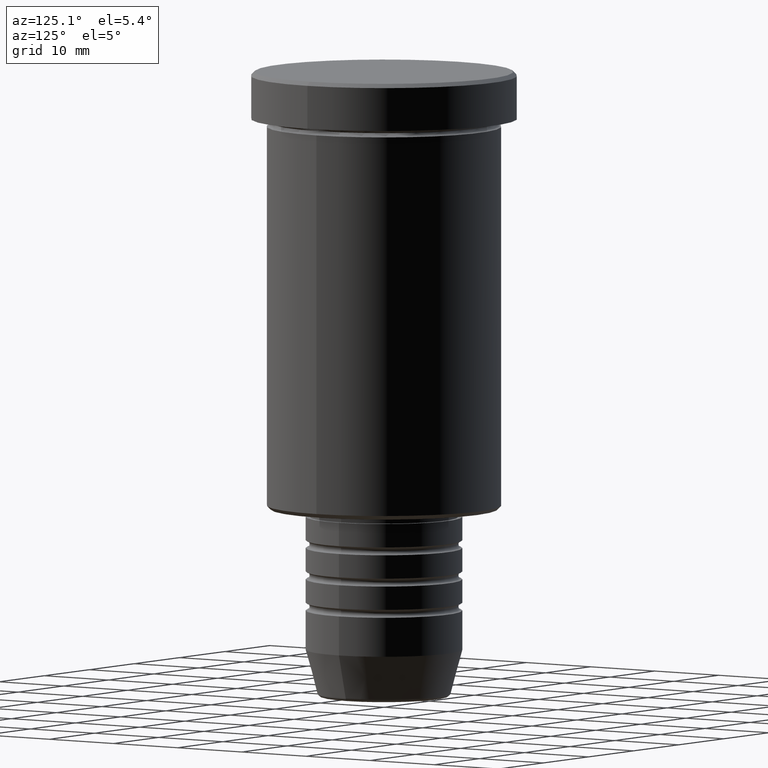
[diagram: clean part render]
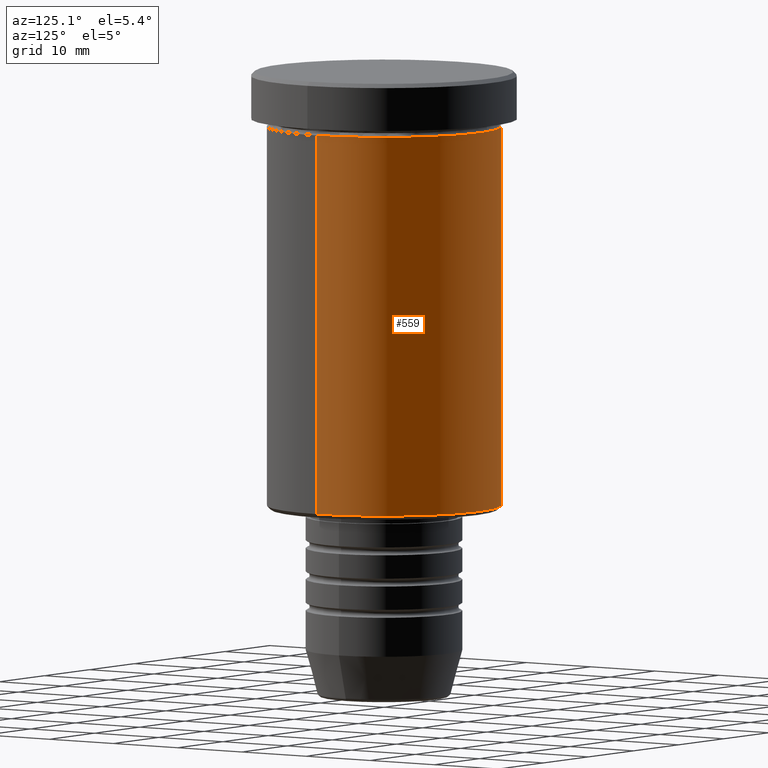
[diagram: same view with one face highlighted and labeled with its STEP entity id]
A machine part, auxiliary view. The second image highlights one B-rep face of the part: STEP entity #559.
In plain terms, the highlighted cylindrical surface (partial cylindrical patch) has radius 15 mm, axis along (-0, -0, 1).
Its self-contained STEP definition (entity closure, byte-faithful):
#11 = CARTESIAN_POINT ( 'NONE',  ( 0.000000000000000000, 0.000000000000000000, -55.49999999999998579 ) ) ;
#93 = CARTESIAN_POINT ( 'NONE',  ( -15.00000000000000000, 1.836970198721029589E-15, -6.999999999999995559 ) ) ;
#100 = CARTESIAN_POINT ( 'NONE',  ( -15.00000000000000000, 1.836970198721029589E-15, -55.49999999999998579 ) ) ;
#118 = FACE_OUTER_BOUND ( 'NONE', #520, .T. ) ;
#120 = VERTEX_POINT ( 'NONE', #93 ) ;
#131 = CARTESIAN_POINT ( 'NONE',  ( 15.00000000000000000, 0.000000000000000000, -6.999999999999995559 ) ) ;
#177 = DIRECTION ( 'NONE',  ( -0.000000000000000000, -0.000000000000000000, 1.000000000000000000 ) ) ;
#280 = CIRCLE ( 'NONE', #650, 15.00000000000000000 ) ;
#298 = CARTESIAN_POINT ( 'NONE',  ( 15.00000000000000000, 0.000000000000000000, -55.49999999999998579 ) ) ;
#373 = VECTOR ( 'NONE', #768, 1000.000000000000000 ) ;
#384 = DIRECTION ( 'NONE',  ( -1.000000000000000000, 0.000000000000000000, 0.000000000000000000 ) ) ;
#386 = VERTEX_POINT ( 'NONE', #131 ) ;
#419 = EDGE_CURVE ( 'NONE', #677, #436, #280, .T. ) ;
#436 = VERTEX_POINT ( 'NONE', #100 ) ;
#472 = VECTOR ( 'NONE', #1053, 1000.000000000000000 ) ;
#478 = ORIENTED_EDGE ( 'NONE', *, *, #419, .T. ) ;
#499 = CARTESIAN_POINT ( 'NONE',  ( -15.00000000000000000, 1.836970198721029589E-15, 0.000000000000000000 ) ) ;
#509 = AXIS2_PLACEMENT_3D ( 'NONE', #835, #751, #754 ) ;
#510 = CYLINDRICAL_SURFACE ( 'NONE', #847, 15.00000000000000000 ) ;
#520 = EDGE_LOOP ( 'NONE', ( #478, #668, #1052, #812 ) ) ;
#559 = ADVANCED_FACE ( 'NONE', ( #118 ), #510, .T. ) ;
#650 = AXIS2_PLACEMENT_3D ( 'NONE', #11, #177, #384 ) ;
#668 = ORIENTED_EDGE ( 'NONE', *, *, #690, .T. ) ;
#677 = VERTEX_POINT ( 'NONE', #298 ) ;
#690 = EDGE_CURVE ( 'NONE', #436, #120, #956, .T. ) ;
#692 = CARTESIAN_POINT ( 'NONE',  ( 0.000000000000000000, 0.000000000000000000, 0.000000000000000000 ) ) ;
#751 = DIRECTION ( 'NONE',  ( -0.000000000000000000, -0.000000000000000000, 1.000000000000000000 ) ) ;
#754 = DIRECTION ( 'NONE',  ( 1.000000000000000000, 0.000000000000000000, 0.000000000000000000 ) ) ;
#768 = DIRECTION ( 'NONE',  ( -0.000000000000000000, -0.000000000000000000, 1.000000000000000000 ) ) ;
#778 = LINE ( 'NONE', #785, #472 ) ;
#785 = CARTESIAN_POINT ( 'NONE',  ( 15.00000000000000000, 0.000000000000000000, 0.000000000000000000 ) ) ;
#812 = ORIENTED_EDGE ( 'NONE', *, *, #1098, .F. ) ;
#835 = CARTESIAN_POINT ( 'NONE',  ( 0.000000000000000000, 0.000000000000000000, -6.999999999999995559 ) ) ;
#847 = AXIS2_PLACEMENT_3D ( 'NONE', #692, #1041, #959 ) ;
#866 = EDGE_CURVE ( 'NONE', #386, #120, #968, .T. ) ;
#956 = LINE ( 'NONE', #499, #373 ) ;
#959 = DIRECTION ( 'NONE',  ( 1.000000000000000000, 0.000000000000000000, 0.000000000000000000 ) ) ;
#968 = CIRCLE ( 'NONE', #509, 15.00000000000000000 ) ;
#1041 = DIRECTION ( 'NONE',  ( -0.000000000000000000, -0.000000000000000000, 1.000000000000000000 ) ) ;
#1052 = ORIENTED_EDGE ( 'NONE', *, *, #866, .F. ) ;
#1053 = DIRECTION ( 'NONE',  ( -0.000000000000000000, -0.000000000000000000, 1.000000000000000000 ) ) ;
#1098 = EDGE_CURVE ( 'NONE', #677, #386, #778, .T. ) ;